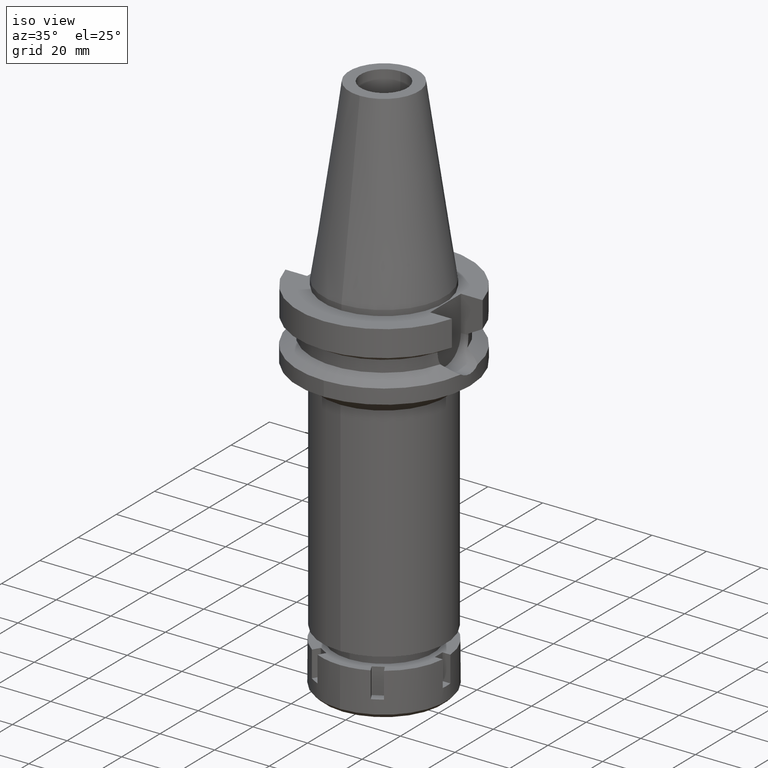
[diagram: clean part render]
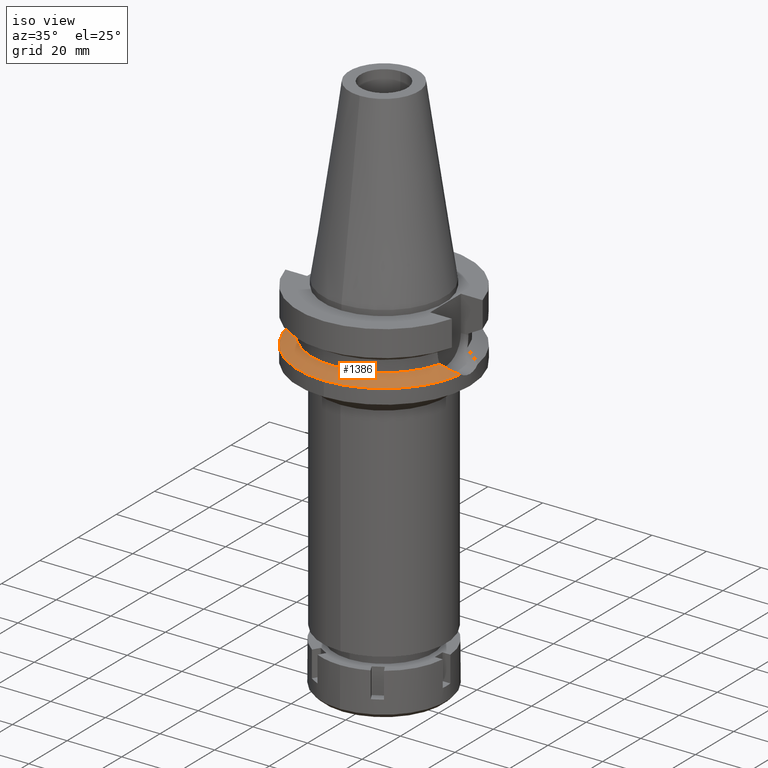
[diagram: same view with one face highlighted and labeled with its STEP entity id]
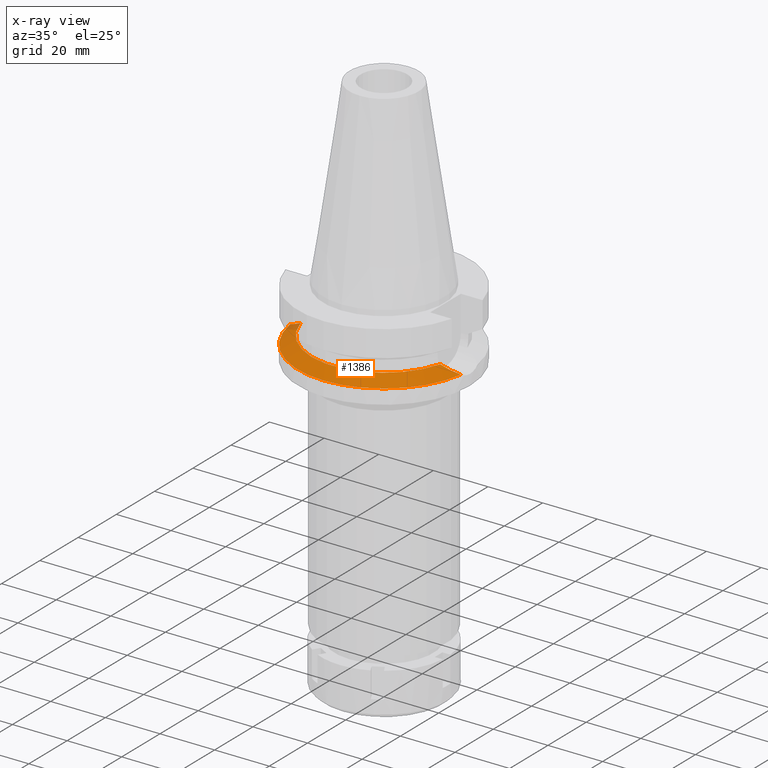
[diagram: x-ray of the same camera — body ghosted, the highlighted face saturated]
A machine part, iso view. The second image highlights one B-rep face of the part: STEP entity #1386.
The next image is the same camera in x-ray: the body ghosted, the highlighted face saturated — about 2% of this face is hidden behind the body in this view.
In plain terms, the highlighted conical surface has half-angle 60 deg.
Its self-contained STEP definition (entity closure, byte-faithful):
#119 = CARTESIAN_POINT ( 'NONE',  ( -29.75853886646849489, -5.412615462309983805, -20.91115859126954746 ) ) ;
#120 = ORIENTED_EDGE ( 'NONE', *, *, #732, .F. ) ;
#188 = CARTESIAN_POINT ( 'NONE',  ( 25.53175183775000079, -7.097862220092999941, -18.74774300138999905 ) ) ;
#200 = DIRECTION ( 'NONE',  ( 0.0000000000000000000, -1.000000000000000000, 0.0000000000000000000 ) ) ;
#222 = DIRECTION ( 'NONE',  ( 0.0000000000000000000, 0.0000000000000000000, -1.000000000000000000 ) ) ;
#248 = EDGE_CURVE ( 'NONE', #1669, #1728, #1418, .T. ) ;
#409 = CARTESIAN_POINT ( 'NONE',  ( -30.42007544950005027, -5.025060322218655173, -21.24829662134768782 ) ) ;
#446 = VERTEX_POINT ( 'NONE', #1076 ) ;
#447 = ORIENTED_EDGE ( 'NONE', *, *, #248, .F. ) ;
#523 = CARTESIAN_POINT ( 'NONE',  ( 26.75887090737320406, -6.731812282059665087, -19.37779480163946388 ) ) ;
#557 = VERTEX_POINT ( 'NONE', #1155 ) ;
#644 = CARTESIAN_POINT ( 'NONE',  ( 0.0000000000000000000, 0.0000000000000000000, -18.74774300138999905 ) ) ;
#677 = CARTESIAN_POINT ( 'NONE',  ( -29.16621656368036142, -5.725961587741553060, -20.60893161952021657 ) ) ;
#720 = CARTESIAN_POINT ( 'NONE',  ( -28.58992710428187323, -6.001991389248821029, -20.31458913630327956 ) ) ;
#732 = EDGE_CURVE ( 'NONE', #446, #3389, #2053, .T. ) ;
#785 = CARTESIAN_POINT ( 'NONE',  ( 28.59247162745020887, -6.001678045002388551, -20.31555038891481502 ) ) ;
#801 = DIRECTION ( 'NONE',  ( 0.0000000000000000000, -1.000000000000000000, 0.0000000000000000000 ) ) ;
#835 = DIRECTION ( 'NONE',  ( 0.0000000000000000000, 0.0000000000000000000, -1.000000000000000000 ) ) ;
#853 = CARTESIAN_POINT ( 'NONE',  ( 27.84649768732370845, -6.323433956480011275, -19.93444919573942897 ) ) ;
#969 = B_SPLINE_CURVE_WITH_KNOTS ( 'NONE', 3,
 ( #1244, #1518, #409, #119, #1801, #677, #1850, #1532, #2631, #720, #3525, #1837, #988, #2118, #2408, #2652 ),
 .UNSPECIFIED., .F., .F.,
 ( 4, 2, 2, 1, 1, 1, 1, 2, 2, 4 ),
 ( 0.0000000000000000000, 0.2500000000000404676, 0.3750000000000597300, 0.4375000000000687783, 0.4687500000000728861, 0.4843750000000742739, 0.4921875000000752731, 0.4960937500000748845, 0.5000000000000743849, 1.000000000000000000 ),
 .UNSPECIFIED. ) ;
#974 = CARTESIAN_POINT ( 'NONE',  ( -25.53175183775000079, -7.097862220092999941, -18.74774300138999905 ) ) ;
#988 = CARTESIAN_POINT ( 'NONE',  ( -28.53958704710133887, -6.024866072819778928, -20.28886785031032503 ) ) ;
#1072 = CARTESIAN_POINT ( 'NONE',  ( 0.0000000000000000000, 0.0000000000000000000, -20.19111867435999841 ) ) ;
#1076 = CARTESIAN_POINT ( 'NONE',  ( 0.0000000000000000000, -31.50000000000000000, -21.63449434733000132 ) ) ;
#1092 = CARTESIAN_POINT ( 'NONE',  ( 31.17899877608999759, -4.485536235554000051, -21.63449434733000132 ) ) ;
#1155 = CARTESIAN_POINT ( 'NONE',  ( 31.17899877608999759, -4.485536235554000051, -21.63449434733000132 ) ) ;
#1244 = CARTESIAN_POINT ( 'NONE',  ( -31.17899877608999759, -4.485536235554000051, -21.63449434733000132 ) ) ;
#1297 = ORIENTED_EDGE ( 'NONE', *, *, #1587, .F. ) ;
#1310 = CONICAL_SURFACE ( 'NONE', #3354, 29.00000000000000000, 1.047197551196400456 ) ;
#1386 = ADVANCED_FACE ( 'NONE', ( #3598 ), #1310, .T. ) ;
#1408 = CARTESIAN_POINT ( 'NONE',  ( 28.22619101746738224, -6.163841846333452779, -20.12847143374437309 ) ) ;
#1418 = CIRCLE ( 'NONE', #1870, 26.50000000000000000 ) ;
#1518 = CARTESIAN_POINT ( 'NONE',  ( -30.82005802125926053, -4.757853331962620835, -21.45175977684344204 ) ) ;
#1532 = CARTESIAN_POINT ( 'NONE',  ( -28.75946772946377550, -5.923705605265533691, -20.40120750052599874 ) ) ;
#1587 = EDGE_CURVE ( 'NONE', #3389, #1669, #969, .T. ) ;
#1629 = CARTESIAN_POINT ( 'NONE',  ( 28.71231193688716488, -5.946370304206068269, -20.37674525064341680 ) ) ;
#1669 = VERTEX_POINT ( 'NONE', #974 ) ;
#1682 = CARTESIAN_POINT ( 'NONE',  ( 25.53175183775000079, -7.097862220092999941, -18.74774300138999905 ) ) ;
#1696 = CARTESIAN_POINT ( 'NONE',  ( 0.0000000000000000000, 0.0000000000000000000, -21.63449434733000132 ) ) ;
#1713 = EDGE_LOOP ( 'NONE', ( #120, #2626, #2948, #447, #1297 ) ) ;
#1728 = VERTEX_POINT ( 'NONE', #188 ) ;
#1762 = DIRECTION ( 'NONE',  ( 0.0000000000000000000, -1.000000000000000000, 0.0000000000000000000 ) ) ;
#1801 = CARTESIAN_POINT ( 'NONE',  ( -29.52776621789251266, -5.539584721979489146, -20.79346419710108762 ) ) ;
#1837 = CARTESIAN_POINT ( 'NONE',  ( -28.54918954969343758, -6.020515500902670070, -20.29377433759710314 ) ) ;
#1850 = CARTESIAN_POINT ( 'NONE',  ( -28.98159406623724976, -5.818130233333441481, -20.51466856790898419 ) ) ;
#1870 = AXIS2_PLACEMENT_3D ( 'NONE', #644, #2044, #1762 ) ;
#1958 = CARTESIAN_POINT ( 'NONE',  ( -31.17899877608999759, -4.485536235554000051, -21.63449434733000132 ) ) ;
#2044 = DIRECTION ( 'NONE',  ( 0.0000000000000000000, 0.0000000000000000000, 1.000000000000000000 ) ) ;
#2053 = CIRCLE ( 'NONE', #2103, 31.50000000000000000 ) ;
#2103 = AXIS2_PLACEMENT_3D ( 'NONE', #3298, #222, #200 ) ;
#2118 = CARTESIAN_POINT ( 'NONE',  ( -27.67082324235268942, -6.417777303599806693, -19.84496065951570287 ) ) ;
#2408 = CARTESIAN_POINT ( 'NONE',  ( -26.67045637361477617, -6.784851855676520493, -19.33274952744005049 ) ) ;
#2626 = ORIENTED_EDGE ( 'NONE', *, *, #2774, .F. ) ;
#2631 = CARTESIAN_POINT ( 'NONE',  ( -28.64672120530456922, -5.975982986601521496, -20.34360679410525563 ) ) ;
#2652 = CARTESIAN_POINT ( 'NONE',  ( -25.53175183775000079, -7.097862220092999941, -18.74774300138999905 ) ) ;
#2662 = EDGE_CURVE ( 'NONE', #1728, #557, #3191, .T. ) ;
#2728 = CARTESIAN_POINT ( 'NONE',  ( 30.52696754882432018, -4.980211883784410709, -21.30254918743210624 ) ) ;
#2748 = AXIS2_PLACEMENT_3D ( 'NONE', #1696, #835, #3064 ) ;
#2774 = EDGE_CURVE ( 'NONE', #557, #446, #3523, .T. ) ;
#2948 = ORIENTED_EDGE ( 'NONE', *, *, #2662, .F. ) ;
#3064 = DIRECTION ( 'NONE',  ( 0.9898094849552905306, -0.1423979757318985240, 0.0000000000000000000 ) ) ;
#3191 = B_SPLINE_CURVE_WITH_KNOTS ( 'NONE', 3,
 ( #1682, #3582, #523, #3366, #853, #1408, #3311, #785, #1629, #3599, #2728, #1092 ),
 .UNSPECIFIED., .F., .F.,
 ( 4, 2, 2, 2, 2, 4 ),
 ( 0.0000000000000000000, 0.2500000000000001665, 0.3750000000000002220, 0.4374999999999999445, 0.4999999999999996669, 1.000000000000000000 ),
 .UNSPECIFIED. ) ;
#3298 = CARTESIAN_POINT ( 'NONE',  ( 0.0000000000000000000, 0.0000000000000000000, -21.63449434733000132 ) ) ;
#3310 = DIRECTION ( 'NONE',  ( 0.0000000000000000000, 0.0000000000000000000, -1.000000000000000000 ) ) ;
#3311 = CARTESIAN_POINT ( 'NONE',  ( 28.35007291681643338, -6.110099198719653124, -20.19175143569905018 ) ) ;
#3354 = AXIS2_PLACEMENT_3D ( 'NONE', #1072, #3310, #801 ) ;
#3366 = CARTESIAN_POINT ( 'NONE',  ( 27.58263862443258319, -6.427650130155488917, -19.79952107489913260 ) ) ;
#3389 = VERTEX_POINT ( 'NONE', #1958 ) ;
#3523 = CIRCLE ( 'NONE', #2748, 31.50000000000001421 ) ;
#3525 = CARTESIAN_POINT ( 'NONE',  ( -28.56549659549861175, -6.013109637102619587, -20.30210646007292041 ) ) ;
#3582 = CARTESIAN_POINT ( 'NONE',  ( 26.16677172481894331, -6.923306134641333820, -19.07398283482425327 ) ) ;
#3598 = FACE_OUTER_BOUND ( 'NONE', #1713, .T. ) ;
#3599 = CARTESIAN_POINT ( 'NONE',  ( 29.74290885879015178, -5.456387302565613773, -20.90305815966738479 ) ) ;